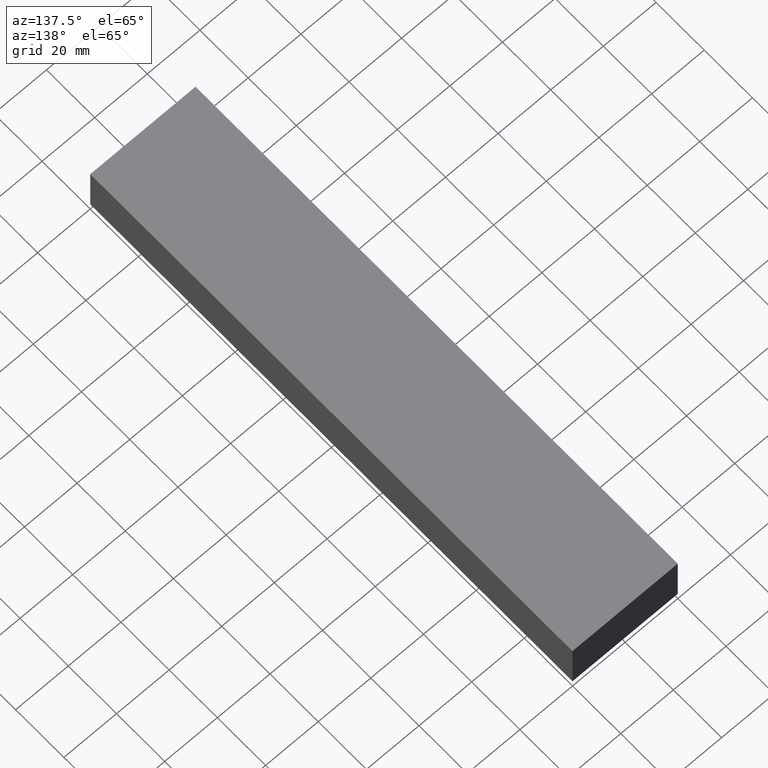
[diagram: clean part render]
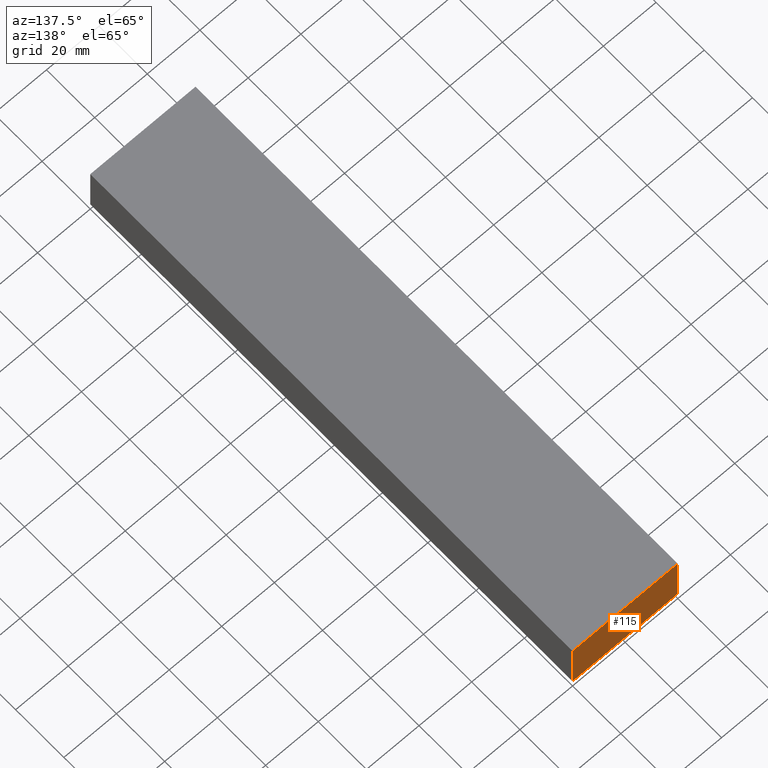
[diagram: same view with one face highlighted and labeled with its STEP entity id]
A machine part, auxiliary view. The second image highlights one B-rep face of the part: STEP entity #115.
In plain terms, the highlighted face is a freeform B-spline surface patch.
Its self-contained STEP definition (entity closure, byte-faithful):
#80=CARTESIAN_POINT('',(-1.997999922472239,200.0,20.998999961236120));
#81=CARTESIAN_POINT('',(41.998000995355838,200.0,20.998999961236120));
#82=CARTESIAN_POINT('',(-1.997999922472239,200.0,-0.999000497677922));
#83=CARTESIAN_POINT('',(41.998000995355838,200.0,-0.999000497677922));
#84=B_SPLINE_SURFACE_WITH_KNOTS('',1,1,((#80,#82),(#81,#83)),.UNSPECIFIED.,.F.,.F.,.U.,(2,2),(2,2),(0.0,43.996000917828077),(0.0,21.998000458914039),.UNSPECIFIED.);
#85=CARTESIAN_POINT('',(0.0,200.0,20.0));
#86=VERTEX_POINT('',#85);
#87=CARTESIAN_POINT('',(40.0,200.0,20.0));
#88=VERTEX_POINT('',#87);
#89=CARTESIAN_POINT('',(0.0,200.0,20.0));
#90=CARTESIAN_POINT('',(40.0,200.0,20.0));
#91=QUASI_UNIFORM_CURVE('',1,(#89,#90),.UNSPECIFIED.,.F.,.U.);
#92=EDGE_CURVE('',#86,#88,#91,.T.);
#93=ORIENTED_EDGE('',*,*,#92,.T.);
#94=CARTESIAN_POINT('',(40.0,200.0,0.0));
#95=VERTEX_POINT('',#94);
#96=CARTESIAN_POINT('',(40.0,200.0,20.0));
#97=CARTESIAN_POINT('',(40.0,200.0,0.0));
#98=QUASI_UNIFORM_CURVE('',1,(#96,#97),.UNSPECIFIED.,.F.,.U.);
#99=EDGE_CURVE('',#88,#95,#98,.T.);
#100=ORIENTED_EDGE('',*,*,#99,.T.);
#101=CARTESIAN_POINT('',(0.0,200.0,0.0));
#102=VERTEX_POINT('',#101);
#103=CARTESIAN_POINT('',(40.0,200.0,0.0));
#104=CARTESIAN_POINT('',(0.0,200.0,0.0));
#105=QUASI_UNIFORM_CURVE('',1,(#103,#104),.UNSPECIFIED.,.F.,.U.);
#106=EDGE_CURVE('',#95,#102,#105,.T.);
#107=ORIENTED_EDGE('',*,*,#106,.T.);
#108=CARTESIAN_POINT('',(0.0,200.0,0.0));
#109=CARTESIAN_POINT('',(0.0,200.0,20.0));
#110=QUASI_UNIFORM_CURVE('',1,(#108,#109),.UNSPECIFIED.,.F.,.U.);
#111=EDGE_CURVE('',#102,#86,#110,.T.);
#112=ORIENTED_EDGE('',*,*,#111,.T.);
#113=EDGE_LOOP('',(#93,#100,#107,#112));
#114=FACE_OUTER_BOUND('',#113,.T.);
#115=ADVANCED_FACE('',(#114),#84,.T.);